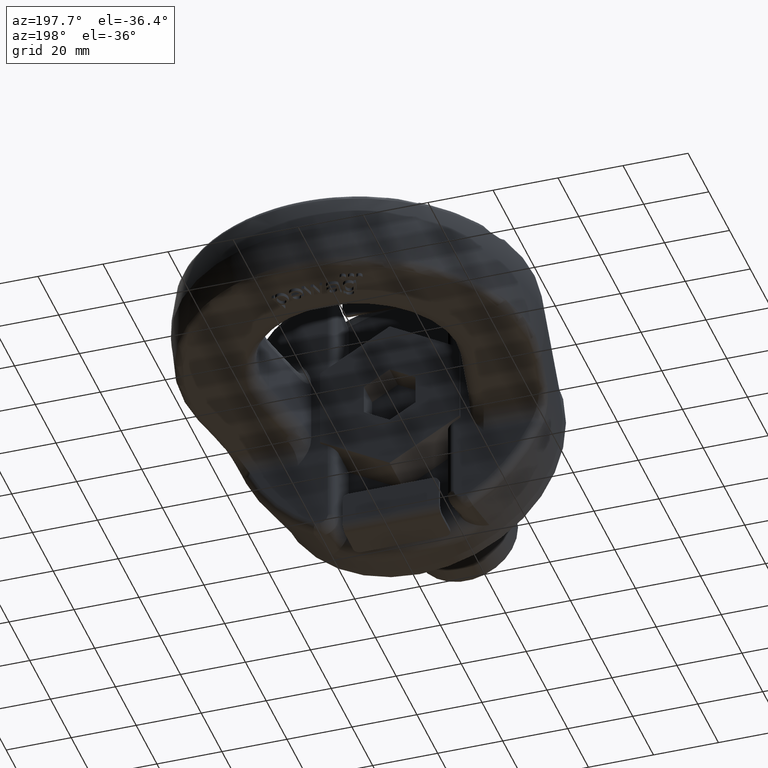
[diagram: clean part render]
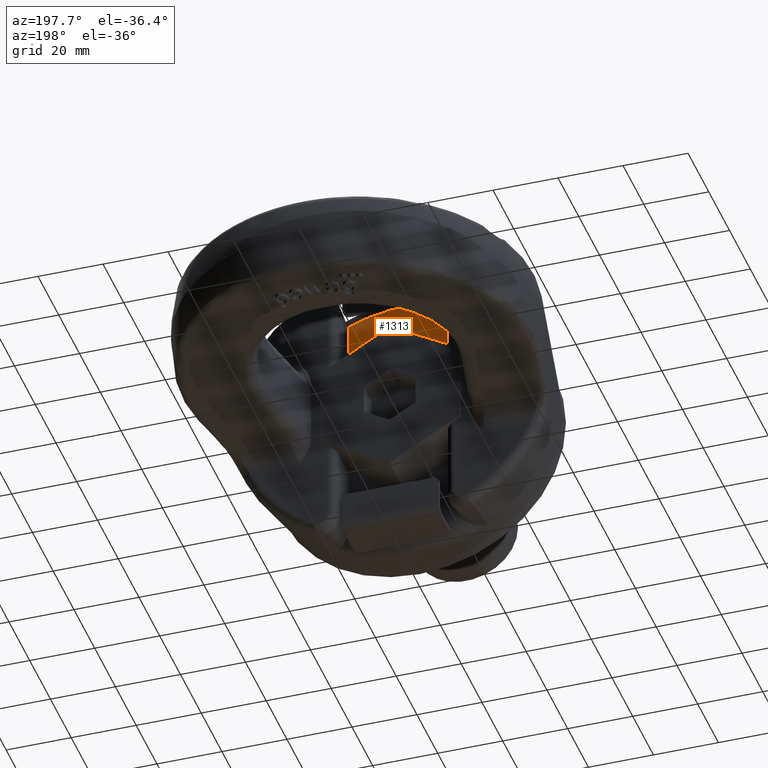
[diagram: same view with one face highlighted and labeled with its STEP entity id]
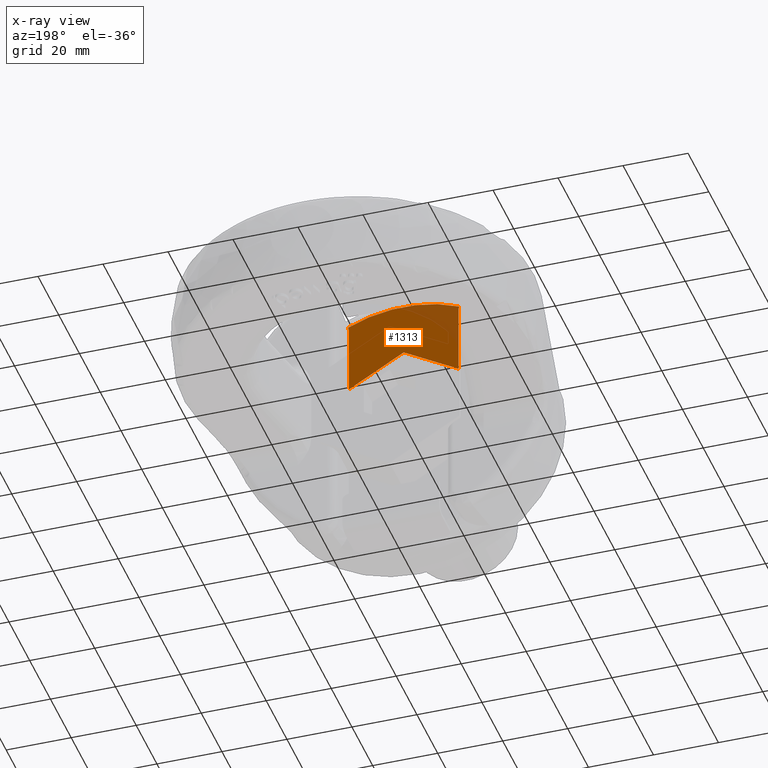
[diagram: x-ray of the same camera — body ghosted, the highlighted face saturated]
A machine part, auxiliary view. The second image highlights one B-rep face of the part: STEP entity #1313.
The next image is the same camera in x-ray: the body ghosted, the highlighted face saturated — about 16% of this face is hidden behind the body in this view.
In plain terms, the highlighted planar face has unit normal (-0, 1, 0).
Its self-contained STEP definition (entity closure, byte-faithful):
#1093=FACE_OUTER_BOUND('',#1825,.T.);
#1313=ADVANCED_FACE('',(#1093),#1552,.T.);
#1552=PLANE('',#5129);
#1673=CIRCLE('',#5128,41.3850144540039);
#1825=EDGE_LOOP('',(#2785,#2786,#2787,#2788,#2789,#2790,#2791));
#2135=LINE('',#6648,#2415);
#2136=LINE('',#6662,#2416);
#2137=LINE('',#6664,#2417);
#2138=LINE('',#6666,#2418);
#2415=VECTOR('',#5453,1.);
#2416=VECTOR('',#5458,1.);
#2417=VECTOR('',#5459,1.);
#2418=VECTOR('',#5460,1.);
#2785=ORIENTED_EDGE('',*,*,#4348,.T.);
#2786=ORIENTED_EDGE('',*,*,#4349,.T.);
#2787=ORIENTED_EDGE('',*,*,#4350,.T.);
#2788=ORIENTED_EDGE('',*,*,#4351,.T.);
#2789=ORIENTED_EDGE('',*,*,#4352,.F.);
#2790=ORIENTED_EDGE('',*,*,#4353,.T.);
#2791=ORIENTED_EDGE('',*,*,#4354,.T.);
#3957=VERTEX_POINT('',#6636);
#3960=VERTEX_POINT('',#6647);
#3961=VERTEX_POINT('',#6654);
#3962=VERTEX_POINT('',#6656);
#3963=VERTEX_POINT('',#6661);
#3964=VERTEX_POINT('',#6663);
#3965=VERTEX_POINT('',#6665);
#4348=EDGE_CURVE('',#3957,#3960,#2135,.T.);
#4349=EDGE_CURVE('',#3960,#3961,#4880,.T.);
#4350=EDGE_CURVE('',#3961,#3962,#1673,.T.);
#4351=EDGE_CURVE('',#3962,#3963,#4881,.T.);
#4352=EDGE_CURVE('',#3964,#3963,#2136,.T.);
#4353=EDGE_CURVE('',#3964,#3965,#2137,.T.);
#4354=EDGE_CURVE('',#3965,#3957,#2138,.T.);
#4880=B_SPLINE_CURVE_WITH_KNOTS('',3,(#6650,#6651,#6652,#6653),
 .UNSPECIFIED.,.F.,.F.,(4,4),(0.,1.),.UNSPECIFIED.);
#4881=B_SPLINE_CURVE_WITH_KNOTS('',3,(#6657,#6658,#6659,#6660),
 .UNSPECIFIED.,.F.,.F.,(4,4),(0.,1.),.UNSPECIFIED.);
#5128=AXIS2_PLACEMENT_3D('',#6655,#5456,#5457);
#5129=AXIS2_PLACEMENT_3D('',#6667,#5461,#5462);
#5453=DIRECTION('',(0.,0.,1.));
#5456=DIRECTION('',(-1.02798428206033E-16,1.,0.));
#5457=DIRECTION('',(-1.,-8.38334116280092E-17,0.));
#5458=DIRECTION('',(0.,0.,1.));
#5459=DIRECTION('',(-0.86602540378444,-8.90260502955356E-17,0.499999999999997));
#5460=DIRECTION('',(-0.86602540378444,-8.90260502955356E-17,-0.499999999999997));
#5461=DIRECTION('',(-1.02798428206033E-16,1.,0.));
#5462=DIRECTION('',(-1.,-1.02348685082632E-16,0.));
#6636=CARTESIAN_POINT('',(-16.875,15.5,15.083275782579));
#6647=CARTESIAN_POINT('',(-16.875,15.5,36.2896250396191));
#6648=CARTESIAN_POINT('',(-16.875,15.5,60.5000000000001));
#6650=CARTESIAN_POINT('',(-16.875,15.5,36.2896250396191));
#6651=CARTESIAN_POINT('',(-16.875,15.5,36.7646257071609));
#6652=CARTESIAN_POINT('',(-16.9403965619817,15.5,37.2439562306086));
#6653=CARTESIAN_POINT('',(-17.0679975104547,15.5,37.7014970835539));
#6654=CARTESIAN_POINT('',(-17.0679975104547,15.5,37.7014970835539));
#6655=CARTESIAN_POINT('',(-1.49423072098338E-13,15.5,0.));
#6656=CARTESIAN_POINT('',(17.0679975104547,15.5,37.7014970835538));
#6657=CARTESIAN_POINT('',(17.0679975104547,15.5,37.7014970835538));
#6658=CARTESIAN_POINT('',(16.9403965619817,15.5,37.2439562306084));
#6659=CARTESIAN_POINT('',(16.875,15.5,36.7646257071608));
#6660=CARTESIAN_POINT('',(16.875,15.5,36.2896250396189));
#6661=CARTESIAN_POINT('',(16.875,15.5,36.2896250396189));
#6662=CARTESIAN_POINT('',(16.875,15.5,60.5000000000001));
#6663=CARTESIAN_POINT('',(16.875,15.5,15.083275782579));
#6664=CARTESIAN_POINT('',(-28.1035184644793,15.5,41.0516355257964));
#6665=CARTESIAN_POINT('',(-3.46944695195361E-15,15.5,24.8260615751538));
#6666=CARTESIAN_POINT('',(2.79101846447921,15.5,26.4374568369341));
#6667=CARTESIAN_POINT('',(-16.875,15.5,60.5000000000001));